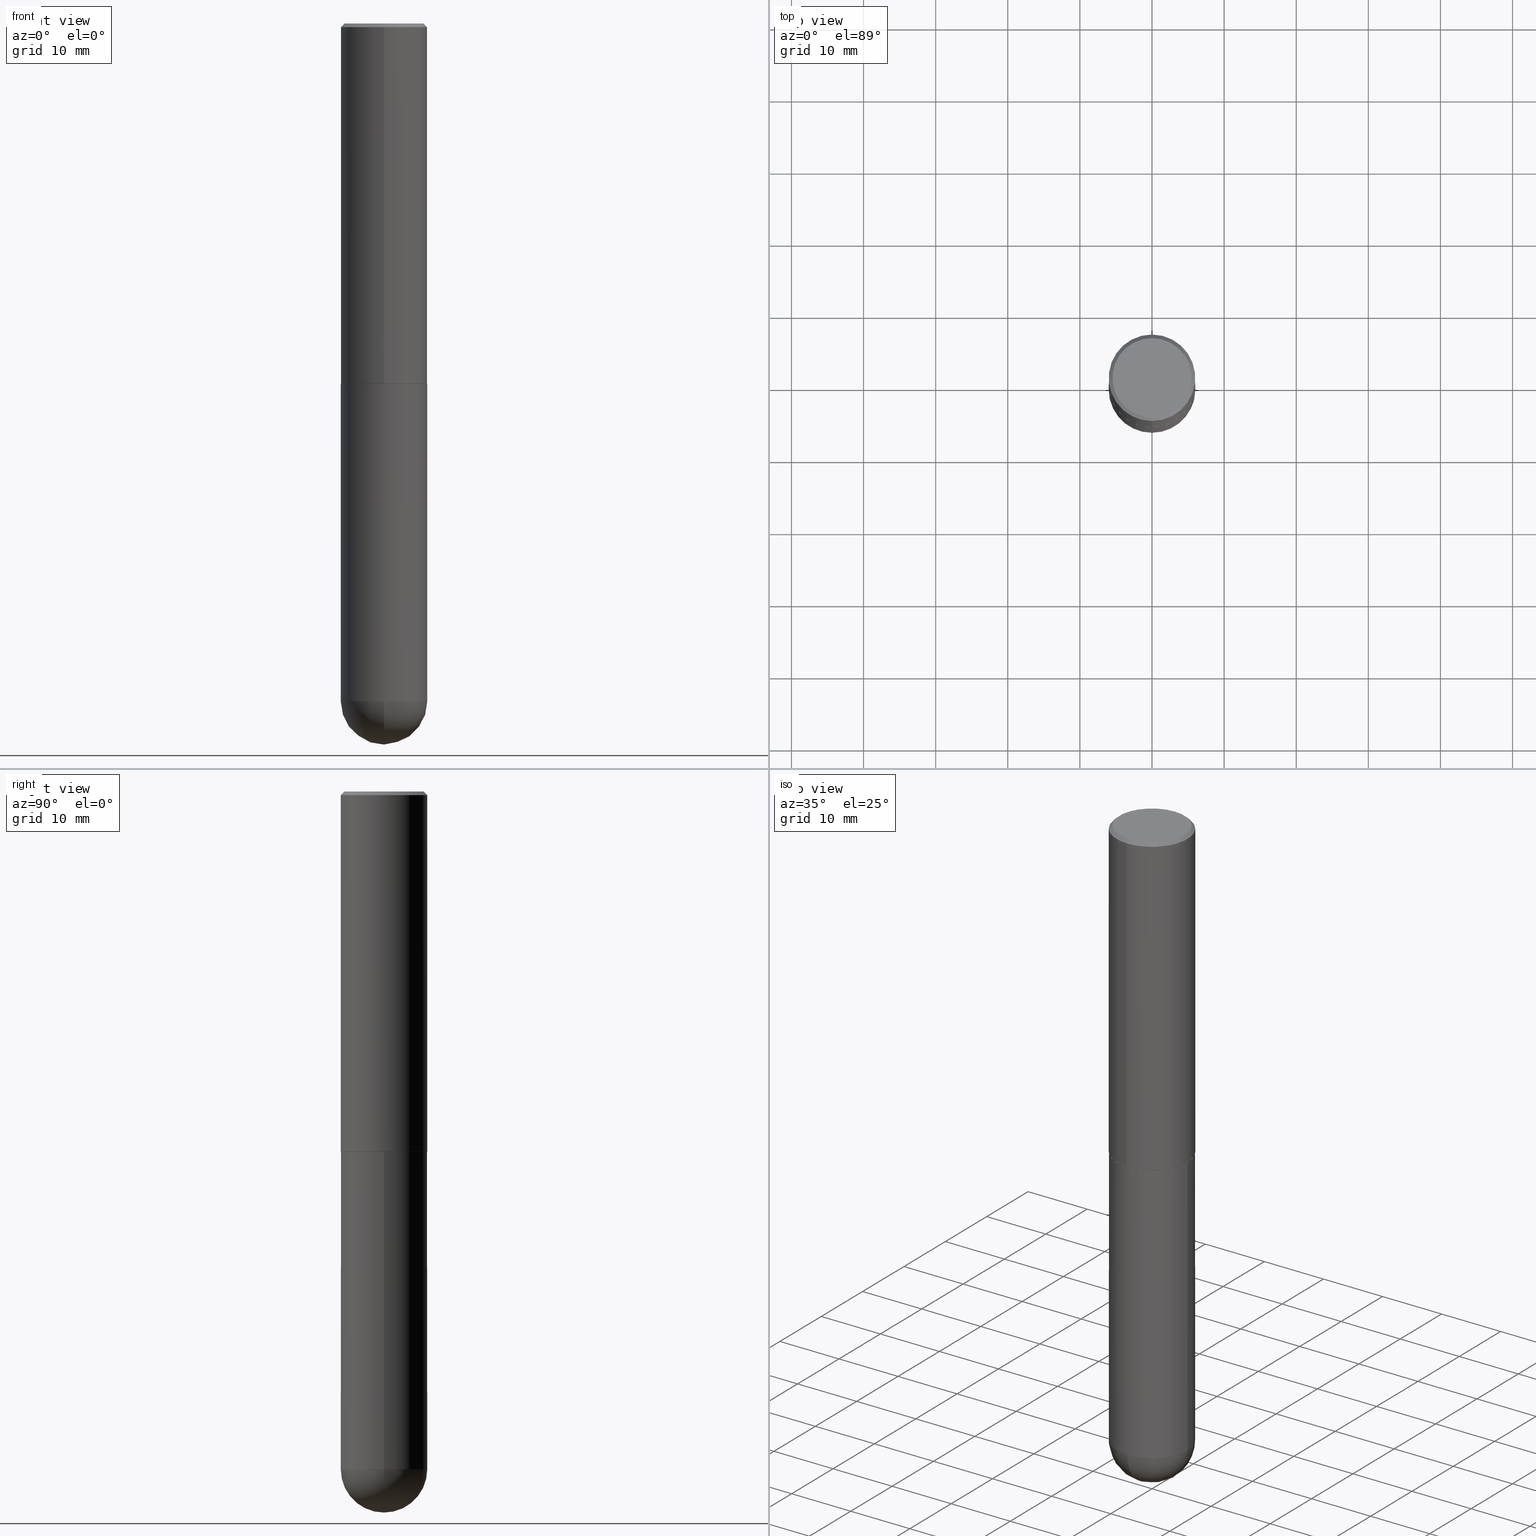
[diagram: canonical four-view strip — front | top / right | iso, engineering-drawing reading convention]
A machine part, canonical four-view strip (front | top / right | iso — engineering-drawing reading convention). The complete STEP part file that produces these views, byte-faithful:
ISO-10303-21;
HEADER;
FILE_DESCRIPTION (( 'STEP AP203' ),
    '1' );
FILE_NAME ('49524.STEP',
    '2024-04-10T12:14:24',
    ( '' ),
    ( '' ),
    'SwSTEP 2.0',
    'SolidWorks 2023',
    '' );
FILE_SCHEMA (( 'CONFIG_CONTROL_DESIGN' ));
ENDSEC;

DATA;
#1 = ORGANIZATION ( 'UNSPECIFIED', 'UNSPECIFIED', '' ) ;
#2 = LOCAL_TIME ( 8, 14, 24.00000000000000000, #121 ) ;
#3 = DIRECTION ( 'NONE',  ( 6.982962677686265922E-15, 1.000000000000000000, -3.493171675597534541E-15 ) ) ;
#4 = CARTESIAN_POINT ( 'NONE',  ( 1.509716530915769534E-15, 0.2161999999999998368, -6.931475597545810117E-16 ) ) ;
#5 =( CONVERSION_BASED_UNIT ( 'INCH', #390 ) LENGTH_UNIT ( ) NAMED_UNIT ( #305 ) );
#6 = CYLINDRICAL_SURFACE ( 'NONE', #339, 0.2361999999999999933 ) ;
#7 = DIRECTION ( 'NONE',  ( 1.000000000000000000, -6.982962677686266711E-15, 4.876176775795936353E-29 ) ) ;
#8 = EDGE_CURVE ( 'NONE', #130, #321, #136, .T. ) ;
#9 = PERSON_AND_ORGANIZATION_ROLE ( 'creator' ) ;
#10 = CIRCLE ( 'NONE', #225, 0.2361999999999999933 ) ;
#11 = FACE_OUTER_BOUND ( 'NONE', #219, .T. ) ;
#12 = AXIS2_PLACEMENT_3D ( 'NONE', #244, #176, #395 ) ;
#13 = FACE_OUTER_BOUND ( 'NONE', #285, .T. ) ;
#14 = EDGE_CURVE ( 'NONE', #230, #406, #198, .T. ) ;
#15 = PERSON ( 'UNSPECIFIED', 'UNSPECIFIED', 'UNSPECIFIED', ('UNSPECIFIED'), ('UNSPECIFIED'), ('UNSPECIFIED') ) ;
#16 = CIRCLE ( 'NONE', #42, 0.2362000000000002153 ) ;
#17 = DIRECTION ( 'NONE',  ( -6.982962677686265922E-15, -1.000000000000000000, 3.493171675597534146E-15 ) ) ;
#18 = CARTESIAN_POINT ( 'NONE',  ( 0.000000000000000000, 0.000000000000000000, 0.000000000000000000 ) ) ;
#19 = ORIENTED_EDGE ( 'NONE', *, *, #177, .T. ) ;
#20 = EDGE_CURVE ( 'NONE', #348, #406, #328, .T. ) ;
#21 = DIRECTION ( 'NONE',  ( -6.982962677686265133E-15, -1.000000000000000000, 3.484499991918703113E-15 ) ) ;
#22 = ORIENTED_EDGE ( 'NONE', *, *, #14, .T. ) ;
#23 = EDGE_CURVE ( 'NONE', #375, #161, #308, .T. ) ;
#24 = DIRECTION ( 'NONE',  ( -6.982962677686265922E-15, -1.000000000000000000, 3.493171675597534541E-15 ) ) ;
#25 = CARTESIAN_POINT ( 'NONE',  ( 9.050190957929953666E-29, -1.292127413879071357E-14, -3.700800000000000090 ) ) ;
#26 = ORIENTED_EDGE ( 'NONE', *, *, #23, .F. ) ;
#27 = ORIENTED_EDGE ( 'NONE', *, *, #157, .F. ) ;
#28 = FACE_OUTER_BOUND ( 'NONE', #92, .T. ) ;
#29 = ORIENTED_EDGE ( 'NONE', *, *, #300, .F. ) ;
#30 = ORIENTED_EDGE ( 'NONE', *, *, #8, .F. ) ;
#31 = ADVANCED_FACE ( 'NONE', ( #167 ), #341, .F. ) ;
#32 = DIRECTION ( 'NONE',  ( 2.444288450338274722E-29, -3.493171675597534541E-15, -1.000000000000000000 ) ) ;
#33 = EDGE_LOOP ( 'NONE', ( #22, #381 ) ) ;
#34 = PRODUCT_DEFINITION_FORMATION_WITH_SPECIFIED_SOURCE ( 'ANY', '', #310, .NOT_KNOWN. ) ;
#35 = CARTESIAN_POINT ( 'NONE',  ( -0.2361999999999999933, 1.678301941865356591E-15, -1.161852468318208757E-29 ) ) ;
#36 = CARTESIAN_POINT ( 'NONE',  ( -1.551844647095919353E-15, -0.2161999999999998368, 8.793760292833972036E-16 ) ) ;
#37 = DATE_AND_TIME ( #410, #97 ) ;
#38 = DIRECTION ( 'NONE',  ( -6.982962677686265922E-15, -1.000000000000000000, 3.493171675597534541E-15 ) ) ;
#39 = CARTESIAN_POINT ( 'NONE',  ( 4.809137526040556277E-29, -6.872815271738149679E-15, -1.967500000000000249 ) ) ;
#40 = FACE_OUTER_BOUND ( 'NONE', #405, .T. ) ;
#41 = EDGE_CURVE ( 'NONE', #161, #348, #10, .T. ) ;
#42 = AXIS2_PLACEMENT_3D ( 'NONE', #338, #400, #119 ) ;
#43 = LOCAL_TIME ( 8, 14, 24.00000000000000000, #54 ) ;
#44 = DIRECTION ( 'NONE',  ( -1.000000000000000000, 7.105427357601001070E-15, -4.926315508542082329E-29 ) ) ;
#45 = APPROVAL ( #216, 'UNSPECIFIED' ) ;
#46 = CONICAL_SURFACE ( 'NONE', #270, 0.2361999999999999933, 0.7853981633974479459 ) ;
#47 = ADVANCED_FACE ( 'NONE', ( #11 ), #68, .F. ) ;
#48 = CIRCLE ( 'NONE', #254, 0.2361999999999999933 ) ;
#49 = CALENDAR_DATE ( 2024, 10, 4 ) ;
#50 = AXIS2_PLACEMENT_3D ( 'NONE', #238, #57, #17 ) ;
#51 = CARTESIAN_POINT ( 'NONE',  ( -1.649375784469449391E-15, -0.2362000000000070710, -1.967499999999999361 ) ) ;
#52 = ADVANCED_FACE ( 'NONE', ( #207 ), #205, .F. ) ;
#53 = CARTESIAN_POINT ( 'NONE',  ( 1.649375784469496525E-15, 0.2361999999999999378, -0.02000000000000087472 ) ) ;
#54 = COORDINATED_UNIVERSAL_TIME_OFFSET ( 5, 0, .BEHIND. ) ;
#55 = AXIS2_PLACEMENT_3D ( 'NONE', #25, #118, #222 ) ;
#56 = CARTESIAN_POINT ( 'NONE',  ( -0.2361999999999999933, -8.218825635286368613E-15, -3.700800000000000090 ) ) ;
#57 = DIRECTION ( 'NONE',  ( -2.444288450338274722E-29, 3.493171675597534541E-15, 1.000000000000000000 ) ) ;
#58 = ORIENTED_EDGE ( 'NONE', *, *, #195, .F. ) ;
#59 = EDGE_LOOP ( 'NONE', ( #152, #402, #217, #346 ) ) ;
#60 = FACE_OUTER_BOUND ( 'NONE', #325, .T. ) ;
#61 = VERTEX_POINT ( 'NONE', #202 ) ;
#62 = ORIENTED_EDGE ( 'NONE', *, *, #101, .F. ) ;
#63 = APPROVAL_STATUS ( 'not_yet_approved' ) ;
#64 = CONICAL_SURFACE ( 'NONE', #214, 0.2361999999999999933, 0.7853981633974479459 ) ;
#65 = ORIENTED_EDGE ( 'NONE', *, *, #67, .F. ) ;
#66 =( LENGTH_UNIT ( ) NAMED_UNIT ( * ) SI_UNIT ( $, .METRE. ) );
#67 = EDGE_CURVE ( 'NONE', #348, #61, #48, .T. ) ;
#68 = PLANE ( 'NONE',  #125 ) ;
#69 = DIRECTION ( 'NONE',  ( 1.000000000000000000, 0.000000000000000000, 0.000000000000000000 ) ) ;
#70 = CARTESIAN_POINT ( 'NONE',  ( 0.000000000000000000, 0.000000000000000000, 0.000000000000000000 ) ) ;
#71 = PERSON_AND_ORGANIZATION ( #15, #1 ) ;
#72 = CARTESIAN_POINT ( 'NONE',  ( 1.678301941865381835E-15, 0.2361999999999933597, -1.967500000000001137 ) ) ;
#73 = DESIGN_CONTEXT ( 'detailed design', #77, 'design' ) ;
#74 = DIRECTION ( 'NONE',  ( -2.445468806185136597E-29, 3.491481338843145583E-15, 1.000000000000000000 ) ) ;
#75 = DIRECTION ( 'NONE',  ( -2.444288450338274442E-29, 3.493171675597534541E-15, 1.000000000000000000 ) ) ;
#76 =( GEOMETRIC_REPRESENTATION_CONTEXT ( 3 ) GLOBAL_UNCERTAINTY_ASSIGNED_CONTEXT ( ( #251 ) ) GLOBAL_UNIT_ASSIGNED_CONTEXT ( ( #5, #271, #102 ) ) REPRESENTATION_CONTEXT ( 'NONE', 'WORKASPACE' ) );
#77 = APPLICATION_CONTEXT ( 'configuration controlled 3d designs of mechanical parts and assemblies' ) ;
#78 = CC_DESIGN_PERSON_AND_ORGANIZATION_ASSIGNMENT ( #141, #189, ( #34 ) ) ;
#79 = CARTESIAN_POINT ( 'NONE',  ( 1.579546157692632833E-15, 0.2161999999999998368, -6.310714032449755487E-16 ) ) ;
#80 = PERSON_AND_ORGANIZATION ( #15, #1 ) ;
#81 = CIRCLE ( 'NONE', #12, 0.2351999999999999924 ) ;
#82 = SECURITY_CLASSIFICATION ( '', '', #154 ) ;
#83 = LINE ( 'NONE', #112, #286 ) ;
#84 = DIRECTION ( 'NONE',  ( -2.445468806185136597E-29, 3.491481338843145583E-15, 1.000000000000000000 ) ) ;
#85 = DATE_AND_TIME ( #371, #237 ) ;
#86 = ORIENTED_EDGE ( 'NONE', *, *, #360, .T. ) ;
#87 = CYLINDRICAL_SURFACE ( 'NONE', #115, 0.2361999999999999933 ) ;
#88 = VERTEX_POINT ( 'NONE', #359 ) ;
#89 = DIRECTION ( 'NONE',  ( -2.445468806185136597E-29, 3.491481338843145583E-15, 1.000000000000000000 ) ) ;
#90 = VERTEX_POINT ( 'NONE', #72 ) ;
#91 = VERTEX_POINT ( 'NONE', #36 ) ;
#92 = EDGE_LOOP ( 'NONE', ( #269, #319, #350, #153 ) ) ;
#93 = DIRECTION ( 'NONE',  ( -6.982962677686265133E-15, -1.000000000000000000, 3.469747663417773847E-15 ) ) ;
#94 = DIRECTION ( 'NONE',  ( -2.444288450338274722E-29, 3.493171675597534541E-15, 1.000000000000000000 ) ) ;
#95 = APPLICATION_PROTOCOL_DEFINITION ( 'international standard', 'config_control_design', 1994, #411 ) ;
#96 = DIRECTION ( 'NONE',  ( -1.000000000000000000, 6.982962677686265922E-15, -4.883557194083112901E-29 ) ) ;
#97 = LOCAL_TIME ( 8, 14, 24.00000000000000000, #356 ) ;
#98 = CYLINDRICAL_SURFACE ( 'NONE', #50, 0.2362000000000001043 ) ;
#99 = DIRECTION ( 'NONE',  ( -6.982962677686265133E-15, -1.000000000000000000, 3.484499991918703113E-15 ) ) ;
#100 = SPHERICAL_SURFACE ( 'NONE', #204, 0.2362000000000002709 ) ;
#101 = EDGE_CURVE ( 'NONE', #88, #61, #295, .T. ) ;
#102 =( NAMED_UNIT ( * ) SI_UNIT ( $, .STERADIAN. ) SOLID_ANGLE_UNIT ( ) );
#103 = AXIS2_PLACEMENT_3D ( 'NONE', #298, #44, #304 ) ;
#104 = DIRECTION ( 'NONE',  ( -6.982962677686265922E-15, -1.000000000000000000, 3.493171675597534541E-15 ) ) ;
#105 = CARTESIAN_POINT ( 'NONE',  ( 1.678301941865357183E-15, 0.2362000000000001043, -8.250871497761379229E-16 ) ) ;
#106 = LINE ( 'NONE', #246, #264 ) ;
#107 = DIRECTION ( 'NONE',  ( -6.982962677686265922E-15, -1.000000000000000000, 3.493171675597534146E-15 ) ) ;
#108 = CC_DESIGN_DATE_AND_TIME_ASSIGNMENT ( #369, #314, ( #82 ) ) ;
#109 = AXIS2_PLACEMENT_3D ( 'NONE', #39, #169, #93 ) ;
#110 = CARTESIAN_POINT ( 'NONE',  ( 1.671196514507803309E-15, 0.2351999999999931368, -1.968500000000000805 ) ) ;
#111 = CARTESIAN_POINT ( 'NONE',  ( -1.642392821791761602E-15, -0.2352000000000068480, -1.968499999999999250 ) ) ;
#112 = CARTESIAN_POINT ( 'NONE',  ( -1.620449627073635079E-15, -0.2362000000000000766, -0.01999999999999922673 ) ) ;
#113 = CALENDAR_DATE ( 2024, 10, 4 ) ;
#114 = DIRECTION ( 'NONE',  ( 1.000000000000000000, -6.982962677686269077E-15, 0.000000000000000000 ) ) ;
#115 = AXIS2_PLACEMENT_3D ( 'NONE', #18, #84, #281 ) ;
#116 = DIRECTION ( 'NONE',  ( 5.024295867789091064E-15, 0.7071067811866947883, 0.7071067811864001351 ) ) ;
#117 = COORDINATED_UNIVERSAL_TIME_OFFSET ( 5, 0, .BEHIND. ) ;
#118 = DIRECTION ( 'NONE',  ( -2.445468806185136597E-29, 3.491481338843145583E-15, 1.000000000000000000 ) ) ;
#119 = DIRECTION ( 'NONE',  ( -6.982962677686265133E-15, -1.000000000000000000, 3.469747663417773847E-15 ) ) ;
#120 = ORIENTED_EDGE ( 'NONE', *, *, #407, .T. ) ;
#121 = COORDINATED_UNIVERSAL_TIME_OFFSET ( 5, 0, .BEHIND. ) ;
#122 = ORIENTED_EDGE ( 'NONE', *, *, #300, .T. ) ;
#123 = DIRECTION ( 'NONE',  ( 6.982962677686265922E-15, 1.000000000000000000, 0.000000000000000000 ) ) ;
#124 = ORIENTED_EDGE ( 'NONE', *, *, #347, .F. ) ;
#125 = AXIS2_PLACEMENT_3D ( 'NONE', #4, #139, #3 ) ;
#126 = DIRECTION ( 'NONE',  ( 6.982962677686265922E-15, 1.000000000000000000, -4.626330217890364603E-15 ) ) ;
#127 = AXIS2_PLACEMENT_3D ( 'NONE', #283, #89, #114 ) ;
#128 = EDGE_LOOP ( 'NONE', ( #412, #401, #192, #200 ) ) ;
#129 = DIRECTION ( 'NONE',  ( -6.982962677686265133E-15, -1.000000000000000000, 3.484499991918703113E-15 ) ) ;
#130 = VERTEX_POINT ( 'NONE', #330 ) ;
#131 = ORIENTED_EDGE ( 'NONE', *, *, #41, .F. ) ;
#132 = SHAPE_DEFINITION_REPRESENTATION ( #277, #291 ) ;
#133 = CC_DESIGN_PERSON_AND_ORGANIZATION_ASSIGNMENT ( #180, #186, ( #82 ) ) ;
#134 = ORIENTED_EDGE ( 'NONE', *, *, #67, .T. ) ;
#135 = CARTESIAN_POINT ( 'NONE',  ( 1.649375784469544054E-15, 0.2361999999999931377, -1.968500000000000805 ) ) ;
#136 = CIRCLE ( 'NONE', #331, 0.2351999999999999924 ) ;
#137 = DIRECTION ( 'NONE',  ( -1.000000000000000000, 6.982962677686265922E-15, -4.876176775795935793E-29 ) ) ;
#138 = ADVANCED_FACE ( 'NONE', ( #40 ), #100, .T. ) ;
#139 = DIRECTION ( 'NONE',  ( 2.444288450338274442E-29, -3.493171675597534541E-15, -1.000000000000000000 ) ) ;
#140 = CLOSED_SHELL ( 'NONE', ( #208, #143, #221, #351, #306, #366, #52, #47 ) ) ;
#141 = PERSON_AND_ORGANIZATION ( #15, #1 ) ;
#142 = APPROVAL_PERSON_ORGANIZATION ( #80, #258, #197 ) ;
#143 = ADVANCED_FACE ( 'NONE', ( #388 ), #98, .T. ) ;
#144 = DIRECTION ( 'NONE',  ( -2.444288450338274722E-29, 3.493171675597534541E-15, 1.000000000000000000 ) ) ;
#145 = EDGE_CURVE ( 'NONE', #91, #293, #83, .T. ) ;
#146 = CIRCLE ( 'NONE', #370, 0.2161999999999998368 ) ;
#147 = CARTESIAN_POINT ( 'NONE',  ( 4.888576900676561635E-31, -6.986343351195086880E-17, -0.02000000000000005246 ) ) ;
#148 = EDGE_LOOP ( 'NONE', ( #30, #260 ) ) ;
#149 = CIRCLE ( 'NONE', #179, 0.2361999999999999933 ) ;
#150 = CARTESIAN_POINT ( 'NONE',  ( 4.813905344975441835E-29, -6.872981015512731707E-15, -1.968500000000000139 ) ) ;
#151 = CC_DESIGN_APPROVAL ( #45, ( #34 ) ) ;
#152 = ORIENTED_EDGE ( 'NONE', *, *, #360, .F. ) ;
#153 = ORIENTED_EDGE ( 'NONE', *, *, #195, .T. ) ;
#154 = SECURITY_CLASSIFICATION_LEVEL ( 'unclassified' ) ;
#155 = DIRECTION ( 'NONE',  ( -1.000000000000000000, 6.982962677686265922E-15, -4.883557194083112901E-29 ) ) ;
#156 = EDGE_LOOP ( 'NONE', ( #290, #86, #227, #190 ) ) ;
#157 = EDGE_CURVE ( 'NONE', #406, #230, #315, .T. ) ;
#158 = CARTESIAN_POINT ( 'NONE',  ( -1.649375784469496722E-15, -0.2362000000000001043, 8.250871497761379229E-16 ) ) ;
#159 = EDGE_LOOP ( 'NONE', ( #257, #267, #268, #29, #354 ) ) ;
#160 = DIRECTION ( 'NONE',  ( 1.000000000000000000, -6.982962677686265133E-15, 0.000000000000000000 ) ) ;
#161 = VERTEX_POINT ( 'NONE', #185 ) ;
#162 = DIRECTION ( 'NONE',  ( -2.444288450338274722E-29, 3.493171675597534541E-15, 1.000000000000000000 ) ) ;
#163 = EDGE_LOOP ( 'NONE', ( #182, #134, #233, #122, #27 ) ) ;
#164 = VECTOR ( 'NONE', #229, 39.37007874015748854 ) ;
#165 = EDGE_CURVE ( 'NONE', #293, #380, #149, .T. ) ;
#166 = CARTESIAN_POINT ( 'NONE',  ( 4.811581814490893760E-29, -6.876308443413746847E-15, -1.968500000000000139 ) ) ;
#167 = FACE_OUTER_BOUND ( 'NONE', #33, .T. ) ;
#168 = PERSON_AND_ORGANIZATION ( #15, #1 ) ;
#169 = DIRECTION ( 'NONE',  ( -2.444288450338274722E-29, 3.493171675597534541E-15, 1.000000000000000000 ) ) ;
#170 = CIRCLE ( 'NONE', #199, 0.2161999999999998368 ) ;
#171 = PERSON_AND_ORGANIZATION_ROLE ( 'design_owner' ) ;
#172 = DIRECTION ( 'NONE',  ( 2.438088387897960049E-29, -3.491481338843145188E-15, -1.000000000000000000 ) ) ;
#173 = DIRECTION ( 'NONE',  ( 1.000000000000000000, -6.982962677686265133E-15, 0.000000000000000000 ) ) ;
#174 = AXIS2_PLACEMENT_3D ( 'NONE', #183, #252, #21 ) ;
#175 = AXIS2_PLACEMENT_3D ( 'NONE', #147, #280, #379 ) ;
#176 = DIRECTION ( 'NONE',  ( -2.444288450338274722E-29, 3.493171675597534541E-15, 1.000000000000000000 ) ) ;
#177 = EDGE_CURVE ( 'NONE', #91, #191, #146, .T. ) ;
#178 = AXIS2_PLACEMENT_3D ( 'NONE', #333, #357, #104 ) ;
#179 = AXIS2_PLACEMENT_3D ( 'NONE', #226, #365, #372 ) ;
#180 = PERSON_AND_ORGANIZATION ( #15, #1 ) ;
#181 = PERSON_AND_ORGANIZATION ( #15, #1 ) ;
#182 = ORIENTED_EDGE ( 'NONE', *, *, #20, .F. ) ;
#183 = CARTESIAN_POINT ( 'NONE',  ( 4.811581814490893760E-29, -6.876308443413746847E-15, -1.968500000000000139 ) ) ;
#184 = DATE_AND_TIME ( #368, #43 ) ;
#185 = CARTESIAN_POINT ( 'NONE',  ( 1.649375784469585666E-15, 0.2361999999999869759, -3.700800000000000978 ) ) ;
#186 = PERSON_AND_ORGANIZATION_ROLE ( 'classification_officer' ) ;
#187 = SPHERICAL_SURFACE ( 'NONE', #236, 0.2362000000000002709 ) ;
#188 = AXIS2_PLACEMENT_3D ( 'NONE', #150, #382, #235 ) ;
#189 = PERSON_AND_ORGANIZATION_ROLE ( 'design_supplier' ) ;
#190 = ORIENTED_EDGE ( 'NONE', *, *, #335, .F. ) ;
#191 = VERTEX_POINT ( 'NONE', #79 ) ;
#192 = ORIENTED_EDGE ( 'NONE', *, *, #165, .F. ) ;
#193 = APPROVAL_DATE_TIME ( #37, #258 ) ;
#194 = ORIENTED_EDGE ( 'NONE', *, *, #389, .F. ) ;
#195 = EDGE_CURVE ( 'NONE', #380, #293, #353, .T. ) ;
#196 = ORIENTED_EDGE ( 'NONE', *, *, #316, .T. ) ;
#197 = APPROVAL_ROLE ( '' ) ;
#198 = CIRCLE ( 'NONE', #188, 0.2361999999999999933 ) ;
#199 = AXIS2_PLACEMENT_3D ( 'NONE', #256, #340, #38 ) ;
#200 = ORIENTED_EDGE ( 'NONE', *, *, #394, .F. ) ;
#201 = MANIFOLD_SOLID_BREP ( 'Body-Move/Copy2[1]', #210 ) ;
#202 = CARTESIAN_POINT ( 'NONE',  ( -1.678301941865268633E-15, -0.2362000000000132882, -3.700799999999998757 ) ) ;
#203 = CARTESIAN_POINT ( 'NONE',  ( 9.050190957929953666E-29, -1.292127413879071357E-14, -3.700800000000000090 ) ) ;
#204 = AXIS2_PLACEMENT_3D ( 'NONE', #240, #96, #386 ) ;
#205 = PLANE ( 'NONE',  #178 ) ;
#206 = LINE ( 'NONE', #110, #345 ) ;
#207 = FACE_OUTER_BOUND ( 'NONE', #148, .T. ) ;
#208 = ADVANCED_FACE ( 'NONE', ( #324 ), #362, .T. ) ;
#209 = CYLINDRICAL_SURFACE ( 'NONE', #241, 0.2362000000000001043 ) ;
#210 = CLOSED_SHELL ( 'NONE', ( #323, #138, #397, #31, #242 ) ) ;
#211 = AXIS2_PLACEMENT_3D ( 'NONE', #403, #263, #123 ) ;
#212 = PERSON_AND_ORGANIZATION ( #15, #1 ) ;
#213 = CARTESIAN_POINT ( 'NONE',  ( -3.034640647956391642E-45, 4.336853432986262076E-31, 1.241523130192108028E-16 ) ) ;
#214 = AXIS2_PLACEMENT_3D ( 'NONE', #231, #326, #364 ) ;
#215 = DIRECTION ( 'NONE',  ( -4.851104656540961908E-15, -0.7071067811865496822, -0.7071067811865453523 ) ) ;
#216 = APPROVAL_STATUS ( 'not_yet_approved' ) ;
#217 = ORIENTED_EDGE ( 'NONE', *, *, #335, .T. ) ;
#218 = EDGE_CURVE ( 'NONE', #344, #90, #387, .T. ) ;
#219 = EDGE_LOOP ( 'NONE', ( #120, #19 ) ) ;
#220 = FACE_OUTER_BOUND ( 'NONE', #59, .T. ) ;
#221 = ADVANCED_FACE ( 'NONE', ( #60 ), #46, .T. ) ;
#222 = DIRECTION ( 'NONE',  ( 1.000000000000000000, -6.982962677686265133E-15, 0.000000000000000000 ) ) ;
#223 = LINE ( 'NONE', #111, #164 ) ;
#224 = ORIENTED_EDGE ( 'NONE', *, *, #165, .T. ) ;
#225 = AXIS2_PLACEMENT_3D ( 'NONE', #203, #74, #173 ) ;
#226 = CARTESIAN_POINT ( 'NONE',  ( 4.888576900676561635E-31, -6.986343351195086880E-17, -0.02000000000000005246 ) ) ;
#227 = ORIENTED_EDGE ( 'NONE', *, *, #218, .F. ) ;
#228 = CC_DESIGN_SECURITY_CLASSIFICATION ( #82, ( #34 ) ) ;
#229 = DIRECTION ( 'NONE',  ( -4.937700262165559362E-15, -0.7071067811866899033, 0.7071067811864050201 ) ) ;
#230 = VERTEX_POINT ( 'NONE', #234 ) ;
#231 = CARTESIAN_POINT ( 'NONE',  ( 4.888576900676561635E-31, -6.986343351195086880E-17, -0.02000000000000005246 ) ) ;
#232 = PRODUCT_RELATED_PRODUCT_CATEGORY ( 'detail', '', ( #310 ) ) ;
#233 = ORIENTED_EDGE ( 'NONE', *, *, #313, .T. ) ;
#234 = CARTESIAN_POINT ( 'NONE',  ( 0.2361999999999999933, -8.522356799982228232E-15, -1.968500000000000139 ) ) ;
#235 = DIRECTION ( 'NONE',  ( 1.000000000000000000, -6.982962677686269077E-15, 0.000000000000000000 ) ) ;
#236 = AXIS2_PLACEMENT_3D ( 'NONE', #342, #155, #126 ) ;
#237 = LOCAL_TIME ( 8, 14, 24.00000000000000000, #259 ) ;
#238 = CARTESIAN_POINT ( 'NONE',  ( 0.000000000000000000, 0.000000000000000000, 0.000000000000000000 ) ) ;
#239 = CC_DESIGN_PERSON_AND_ORGANIZATION_ASSIGNMENT ( #168, #9, ( #34 ) ) ;
#240 = CARTESIAN_POINT ( 'NONE',  ( 8.719071180016067419E-29, -1.339545650693076387E-14, -3.700800000000000090 ) ) ;
#241 = AXIS2_PLACEMENT_3D ( 'NONE', #334, #144, #107 ) ;
#242 = ADVANCED_FACE ( 'NONE', ( #297 ), #6, .T. ) ;
#243 = APPLICATION_PROTOCOL_DEFINITION ( 'international standard', 'config_control_design', 1994, #77 ) ;
#244 = CARTESIAN_POINT ( 'NONE',  ( 4.811581814490893760E-29, -6.876308443413746847E-15, -1.968500000000000139 ) ) ;
#245 = CARTESIAN_POINT ( 'NONE',  ( 9.050190957929953666E-29, -1.292127413879071357E-14, -3.700800000000000090 ) ) ;
#246 = CARTESIAN_POINT ( 'NONE',  ( 0.2361999999999999933, -1.649375784469496131E-15, 1.151752954443000088E-29 ) ) ;
#247 = APPROVAL_STATUS ( 'not_yet_approved' ) ;
#248 = CARTESIAN_POINT ( 'NONE',  ( 9.050190957929953666E-29, -1.292127413879071357E-14, -3.700800000000000090 ) ) ;
#249 = VECTOR ( 'NONE', #318, 39.37007874015748143 ) ;
#250 = CC_DESIGN_APPROVAL ( #258, ( #82 ) ) ;
#251 = UNCERTAINTY_MEASURE_WITH_UNIT (LENGTH_MEASURE( 1.000000000000000082E-05 ), #5, 'distance_accuracy_value', 'NONE');
#252 = DIRECTION ( 'NONE',  ( -2.444288450338274722E-29, 3.493171675597534541E-15, 1.000000000000000000 ) ) ;
#253 = CARTESIAN_POINT ( 'NONE',  ( -0.2361999999999999933, -8.218825635286365458E-15, -1.968500000000000139 ) ) ;
#254 = AXIS2_PLACEMENT_3D ( 'NONE', #245, #393, #272 ) ;
#255 = VECTOR ( 'NONE', #367, 39.37007874015748143 ) ;
#256 = CARTESIAN_POINT ( 'NONE',  ( -3.034640647956391642E-45, 4.336853432986262076E-31, 1.241523130192108028E-16 ) ) ;
#257 = ORIENTED_EDGE ( 'NONE', *, *, #41, .T. ) ;
#258 = APPROVAL ( #63, 'UNSPECIFIED' ) ;
#259 = COORDINATED_UNIVERSAL_TIME_OFFSET ( 5, 0, .BEHIND. ) ;
#260 = ORIENTED_EDGE ( 'NONE', *, *, #289, .F. ) ;
#261 = CARTESIAN_POINT ( 'NONE',  ( 1.674749228186604602E-15, 0.2351999999999931368, -1.968500000000000805 ) ) ;
#262 = EDGE_LOOP ( 'NONE', ( #62, #276, #26, #322 ) ) ;
#263 = DIRECTION ( 'NONE',  ( 1.000000000000000000, -6.982962677686265922E-15, 4.883557194083112340E-29 ) ) ;
#264 = VECTOR ( 'NONE', #361, 39.37007874015748143 ) ;
#265 = APPROVAL_DATE_TIME ( #404, #284 ) ;
#266 = CC_DESIGN_DATE_AND_TIME_ASSIGNMENT ( #85, #378, ( #352 ) ) ;
#267 = ORIENTED_EDGE ( 'NONE', *, *, #20, .T. ) ;
#268 = ORIENTED_EDGE ( 'NONE', *, *, #14, .F. ) ;
#269 = ORIENTED_EDGE ( 'NONE', *, *, #145, .F. ) ;
#270 = AXIS2_PLACEMENT_3D ( 'NONE', #384, #32, #408 ) ;
#271 =( NAMED_UNIT ( * ) PLANE_ANGLE_UNIT ( ) SI_UNIT ( $, .RADIAN. ) );
#272 = DIRECTION ( 'NONE',  ( 1.000000000000000000, -6.982962677686265133E-15, 0.000000000000000000 ) ) ;
#273 = CC_DESIGN_PERSON_AND_ORGANIZATION_ASSIGNMENT ( #181, #287, ( #352 ) ) ;
#274 = LOCAL_TIME ( 8, 14, 24.00000000000000000, #117 ) ;
#275 = PERSON_AND_ORGANIZATION ( #15, #1 ) ;
#276 = ORIENTED_EDGE ( 'NONE', *, *, #389, .T. ) ;
#277 = PRODUCT_DEFINITION_SHAPE ( 'NONE', 'NONE',  #352 ) ;
#278 = CIRCLE ( 'NONE', #211, 0.2362000000000002709 ) ;
#279 = CC_DESIGN_PERSON_AND_ORGANIZATION_ASSIGNMENT ( #71, #171, ( #310 ) ) ;
#280 = DIRECTION ( 'NONE',  ( -2.444288450338274722E-29, 3.493171675597534541E-15, 1.000000000000000000 ) ) ;
#281 = DIRECTION ( 'NONE',  ( 1.000000000000000000, -6.982962677686266711E-15, 4.876176775795936353E-29 ) ) ;
#282 = EDGE_CURVE ( 'NONE', #90, #380, #392, .T. ) ;
#283 = CARTESIAN_POINT ( 'NONE',  ( 4.813905344975441835E-29, -6.872981015512731707E-15, -1.968500000000000139 ) ) ;
#284 = APPROVAL ( #247, 'UNSPECIFIED' ) ;
#285 = EDGE_LOOP ( 'NONE', ( #327, #196, #373, #58 ) ) ;
#286 = VECTOR ( 'NONE', #215, 39.37007874015748143 ) ;
#287 = PERSON_AND_ORGANIZATION_ROLE ( 'creator' ) ;
#288 = ORIENTED_EDGE ( 'NONE', *, *, #101, .T. ) ;
#289 = EDGE_CURVE ( 'NONE', #321, #130, #81, .T. ) ;
#290 = ORIENTED_EDGE ( 'NONE', *, *, #8, .T. ) ;
#291 = ADVANCED_BREP_SHAPE_REPRESENTATION ( '49524', ( #201, #336, #396 ), #76 ) ;
#292 = DIRECTION ( 'NONE',  ( -2.444288450338274442E-29, 3.493171675597534541E-15, 1.000000000000000000 ) ) ;
#293 = VERTEX_POINT ( 'NONE', #311 ) ;
#294 = ORIENTED_EDGE ( 'NONE', *, *, #177, .F. ) ;
#295 = CIRCLE ( 'NONE', #103, 0.2362000000000002709 ) ;
#296 = CIRCLE ( 'NONE', #358, 0.2361999999999999933 ) ;
#297 = FACE_OUTER_BOUND ( 'NONE', #163, .T. ) ;
#298 = CARTESIAN_POINT ( 'NONE',  ( 8.719071180016067419E-29, -1.339545650693076387E-14, -3.700800000000000090 ) ) ;
#299 = MECHANICAL_CONTEXT ( 'NONE', #411, 'mechanical' ) ;
#300 = EDGE_CURVE ( 'NONE', #375, #230, #106, .T. ) ;
#301 = AXIS2_PLACEMENT_3D ( 'NONE', #135, #172, #137 ) ;
#302 = APPROVAL_PERSON_ORGANIZATION ( #275, #284, #312 ) ;
#303 = CARTESIAN_POINT ( 'NONE',  ( 0.000000000000000000, 0.000000000000000000, 0.000000000000000000 ) ) ;
#304 = DIRECTION ( 'NONE',  ( -7.105427357601001070E-15, -1.000000000000000000, 0.000000000000000000 ) ) ;
#305 = DIMENSIONAL_EXPONENTS ( 1.000000000000000000, 0.000000000000000000, 0.000000000000000000, 0.000000000000000000, 0.000000000000000000, 0.000000000000000000, 0.000000000000000000 ) ;
#306 = ADVANCED_FACE ( 'NONE', ( #13 ), #209, .T. ) ;
#307 = DIRECTION ( 'NONE',  ( -2.445468806185136597E-29, 3.491481338843145583E-15, 1.000000000000000000 ) ) ;
#308 = CIRCLE ( 'NONE', #55, 0.2361999999999999933 ) ;
#309 = CONICAL_SURFACE ( 'NONE', #174, 0.2351999999999999924, 0.7853981633976532262 ) ;
#310 = PRODUCT ( '49524', '49524', '', ( #299 ) ) ;
#311 = CARTESIAN_POINT ( 'NONE',  ( -1.620449627073635079E-15, -0.2362000000000000766, -0.01999999999999922673 ) ) ;
#312 = APPROVAL_ROLE ( '' ) ;
#313 = EDGE_CURVE ( 'NONE', #61, #375, #296, .T. ) ;
#314 = DATE_TIME_ROLE ( 'classification_date' ) ;
#315 = CIRCLE ( 'NONE', #127, 0.2361999999999999933 ) ;
#316 = EDGE_CURVE ( 'NONE', #90, #344, #16, .T. ) ;
#317 = DIRECTION ( 'NONE',  ( -2.444288450338274722E-29, 3.493171675597534541E-15, 1.000000000000000000 ) ) ;
#318 = DIRECTION ( 'NONE',  ( -2.445468806185136877E-29, 3.491481338843145188E-15, 1.000000000000000000 ) ) ;
#319 = ORIENTED_EDGE ( 'NONE', *, *, #407, .F. ) ;
#320 = LINE ( 'NONE', #343, #255 ) ;
#321 = VERTEX_POINT ( 'NONE', #261 ) ;
#322 = ORIENTED_EDGE ( 'NONE', *, *, #313, .F. ) ;
#323 = ADVANCED_FACE ( 'NONE', ( #374 ), #87, .T. ) ;
#324 = FACE_OUTER_BOUND ( 'NONE', #156, .T. ) ;
#325 = EDGE_LOOP ( 'NONE', ( #294, #385, #224, #124 ) ) ;
#326 = DIRECTION ( 'NONE',  ( 2.444288450338274722E-29, -3.493171675597534541E-15, -1.000000000000000000 ) ) ;
#327 = ORIENTED_EDGE ( 'NONE', *, *, #282, .F. ) ;
#328 = LINE ( 'NONE', #35, #249 ) ;
#329 = CC_DESIGN_APPROVAL ( #284, ( #352 ) ) ;
#330 = CARTESIAN_POINT ( 'NONE',  ( -1.642392821791761602E-15, -0.2352000000000068480, -1.968499999999999250 ) ) ;
#331 = AXIS2_PLACEMENT_3D ( 'NONE', #409, #94, #129 ) ;
#332 = APPROVAL_PERSON_ORGANIZATION ( #212, #45, #337 ) ;
#333 = CARTESIAN_POINT ( 'NONE',  ( 4.811581814490893760E-29, -6.876308443413746847E-15, -1.968500000000000139 ) ) ;
#334 = CARTESIAN_POINT ( 'NONE',  ( 0.000000000000000000, 0.000000000000000000, 0.000000000000000000 ) ) ;
#335 = EDGE_CURVE ( 'NONE', #130, #344, #223, .T. ) ;
#336 = MANIFOLD_SOLID_BREP ( 'Body-Move/Copy2[2]', #140 ) ;
#337 = APPROVAL_ROLE ( '' ) ;
#338 = CARTESIAN_POINT ( 'NONE',  ( 4.809137526040556277E-29, -6.872815271738149679E-15, -1.967500000000000249 ) ) ;
#339 = AXIS2_PLACEMENT_3D ( 'NONE', #70, #307, #7 ) ;
#340 = DIRECTION ( 'NONE',  ( -2.444288450338274722E-29, 3.493171675597534541E-15, 1.000000000000000000 ) ) ;
#341 = PLANE ( 'NONE',  #301 ) ;
#342 = CARTESIAN_POINT ( 'NONE',  ( 8.719071180016067419E-29, -1.339545650693076387E-14, -3.700800000000000090 ) ) ;
#343 = CARTESIAN_POINT ( 'NONE',  ( 1.649375784469496525E-15, 0.2361999999999999378, -0.02000000000000087472 ) ) ;
#344 = VERTEX_POINT ( 'NONE', #51 ) ;
#345 = VECTOR ( 'NONE', #116, 39.37007874015748854 ) ;
#346 = ORIENTED_EDGE ( 'NONE', *, *, #316, .F. ) ;
#347 = EDGE_CURVE ( 'NONE', #191, #380, #320, .T. ) ;
#348 = VERTEX_POINT ( 'NONE', #56 ) ;
#349 = FACE_OUTER_BOUND ( 'NONE', #262, .T. ) ;
#350 = ORIENTED_EDGE ( 'NONE', *, *, #347, .T. ) ;
#351 = ADVANCED_FACE ( 'NONE', ( #28 ), #64, .T. ) ;
#352 = PRODUCT_DEFINITION ( 'UNKNOWN', '', #34, #73 ) ;
#353 = CIRCLE ( 'NONE', #175, 0.2361999999999999933 ) ;
#354 = ORIENTED_EDGE ( 'NONE', *, *, #23, .T. ) ;
#355 = DIRECTION ( 'NONE',  ( 0.000000000000000000, 0.000000000000000000, 1.000000000000000000 ) ) ;
#356 = COORDINATED_UNIVERSAL_TIME_OFFSET ( 5, 0, .BEHIND. ) ;
#357 = DIRECTION ( 'NONE',  ( -2.444288450338274442E-29, 3.493171675597534541E-15, 1.000000000000000000 ) ) ;
#358 = AXIS2_PLACEMENT_3D ( 'NONE', #248, #363, #160 ) ;
#359 = CARTESIAN_POINT ( 'NONE',  ( 9.306790425912204830E-29, -1.420568132046758614E-14, -3.937000000000000277 ) ) ;
#360 = EDGE_CURVE ( 'NONE', #321, #90, #206, .T. ) ;
#361 = DIRECTION ( 'NONE',  ( -2.445468806185136877E-29, 3.491481338843145188E-15, 1.000000000000000000 ) ) ;
#362 = CONICAL_SURFACE ( 'NONE', #376, 0.2351999999999999924, 0.7853981633976532262 ) ;
#363 = DIRECTION ( 'NONE',  ( -2.445468806185136597E-29, 3.491481338843145583E-15, 1.000000000000000000 ) ) ;
#364 = DIRECTION ( 'NONE',  ( 6.982962677686265922E-15, 1.000000000000000000, -3.487819265831411744E-15 ) ) ;
#365 = DIRECTION ( 'NONE',  ( -2.444288450338274722E-29, 3.493171675597534541E-15, 1.000000000000000000 ) ) ;
#366 = ADVANCED_FACE ( 'NONE', ( #220 ), #309, .T. ) ;
#367 = DIRECTION ( 'NONE',  ( 4.937700262164545676E-15, 0.7071067811865447972, -0.7071067811865502373 ) ) ;
#368 = CALENDAR_DATE ( 2024, 10, 4 ) ;
#369 = DATE_AND_TIME ( #113, #2 ) ;
#370 = AXIS2_PLACEMENT_3D ( 'NONE', #213, #317, #24 ) ;
#371 = CALENDAR_DATE ( 2024, 10, 4 ) ;
#372 = DIRECTION ( 'NONE',  ( -6.982962677686265922E-15, -1.000000000000000000, 3.487819265831411744E-15 ) ) ;
#373 = ORIENTED_EDGE ( 'NONE', *, *, #394, .T. ) ;
#374 = FACE_OUTER_BOUND ( 'NONE', #159, .T. ) ;
#375 = VERTEX_POINT ( 'NONE', #399 ) ;
#376 = AXIS2_PLACEMENT_3D ( 'NONE', #166, #162, #99 ) ;
#377 = LINE ( 'NONE', #158, #398 ) ;
#378 = DATE_TIME_ROLE ( 'creation_date' ) ;
#379 = DIRECTION ( 'NONE',  ( -6.982962677686265922E-15, -1.000000000000000000, 3.487819265831411744E-15 ) ) ;
#380 = VERTEX_POINT ( 'NONE', #53 ) ;
#381 = ORIENTED_EDGE ( 'NONE', *, *, #157, .T. ) ;
#382 = DIRECTION ( 'NONE',  ( -2.445468806185136597E-29, 3.491481338843145583E-15, 1.000000000000000000 ) ) ;
#383 = APPROVAL_DATE_TIME ( #184, #45 ) ;
#384 = CARTESIAN_POINT ( 'NONE',  ( 4.888576900676561635E-31, -6.986343351195086880E-17, -0.02000000000000005246 ) ) ;
#385 = ORIENTED_EDGE ( 'NONE', *, *, #145, .T. ) ;
#386 = DIRECTION ( 'NONE',  ( 6.982962677686265922E-15, 1.000000000000000000, -4.626330217890364603E-15 ) ) ;
#387 = CIRCLE ( 'NONE', #109, 0.2362000000000002153 ) ;
#388 = FACE_OUTER_BOUND ( 'NONE', #128, .T. ) ;
#389 = EDGE_CURVE ( 'NONE', #88, #161, #278, .T. ) ;
#390 = LENGTH_MEASURE_WITH_UNIT ( LENGTH_MEASURE( 0.02539999999999999897 ), #66 );
#391 = VECTOR ( 'NONE', #75, 39.37007874015748143 ) ;
#392 = LINE ( 'NONE', #105, #391 ) ;
#393 = DIRECTION ( 'NONE',  ( -2.445468806185136597E-29, 3.491481338843145583E-15, 1.000000000000000000 ) ) ;
#394 = EDGE_CURVE ( 'NONE', #344, #293, #377, .T. ) ;
#395 = DIRECTION ( 'NONE',  ( -6.982962677686265133E-15, -1.000000000000000000, 3.484499991918703113E-15 ) ) ;
#396 = AXIS2_PLACEMENT_3D ( 'NONE', #303, #355, #69 ) ;
#397 = ADVANCED_FACE ( 'NONE', ( #349 ), #187, .T. ) ;
#398 = VECTOR ( 'NONE', #292, 39.37007874015748143 ) ;
#399 = CARTESIAN_POINT ( 'NONE',  ( 0.2361999999999999933, -1.154650336162122153E-14, -3.700800000000000090 ) ) ;
#400 = DIRECTION ( 'NONE',  ( -2.444288450338274722E-29, 3.493171675597534541E-15, 1.000000000000000000 ) ) ;
#401 = ORIENTED_EDGE ( 'NONE', *, *, #282, .T. ) ;
#402 = ORIENTED_EDGE ( 'NONE', *, *, #289, .T. ) ;
#403 = CARTESIAN_POINT ( 'NONE',  ( 8.719071180016067419E-29, -1.339545650693076387E-14, -3.700800000000000090 ) ) ;
#404 = DATE_AND_TIME ( #49, #274 ) ;
#405 = EDGE_LOOP ( 'NONE', ( #194, #288, #65, #131 ) ) ;
#406 = VERTEX_POINT ( 'NONE', #253 ) ;
#407 = EDGE_CURVE ( 'NONE', #191, #91, #170, .T. ) ;
#408 = DIRECTION ( 'NONE',  ( 6.982962677686265922E-15, 1.000000000000000000, -3.487819265831411744E-15 ) ) ;
#409 = CARTESIAN_POINT ( 'NONE',  ( 4.811581814490893760E-29, -6.876308443413746847E-15, -1.968500000000000139 ) ) ;
#410 = CALENDAR_DATE ( 2024, 10, 4 ) ;
#411 = APPLICATION_CONTEXT ( 'configuration controlled 3d designs of mechanical parts and assemblies' ) ;
#412 = ORIENTED_EDGE ( 'NONE', *, *, #218, .T. ) ;
ENDSEC;
END-ISO-10303-21;
